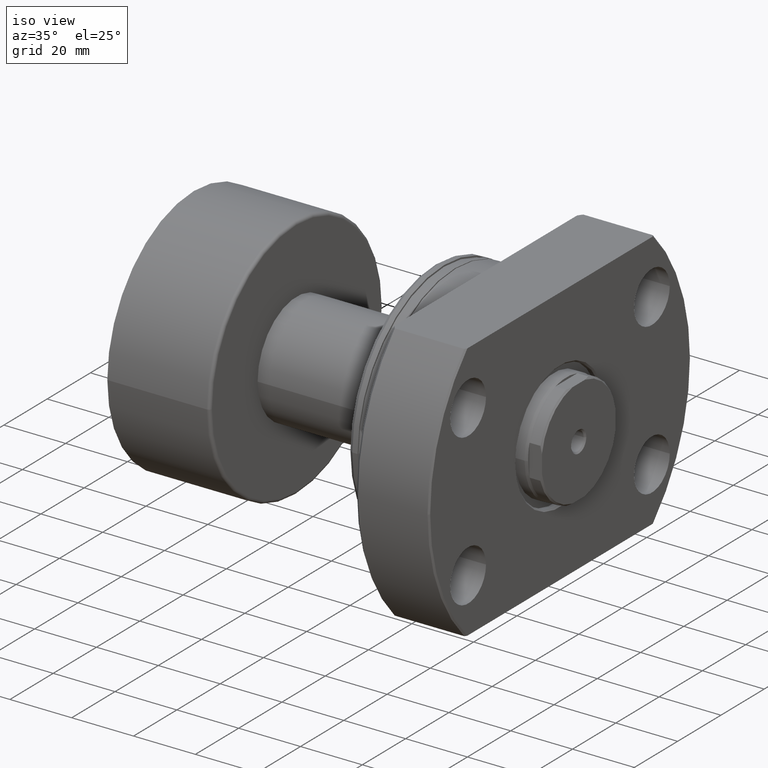
[diagram: clean part render]
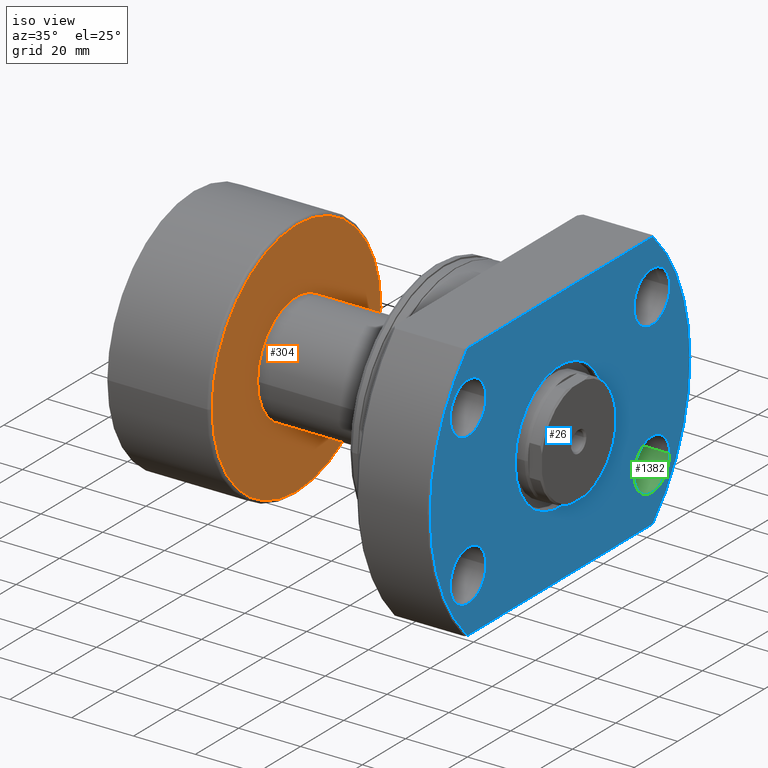
[diagram: same view with three faces highlighted in distinct colors, each labeled with its STEP entity id]
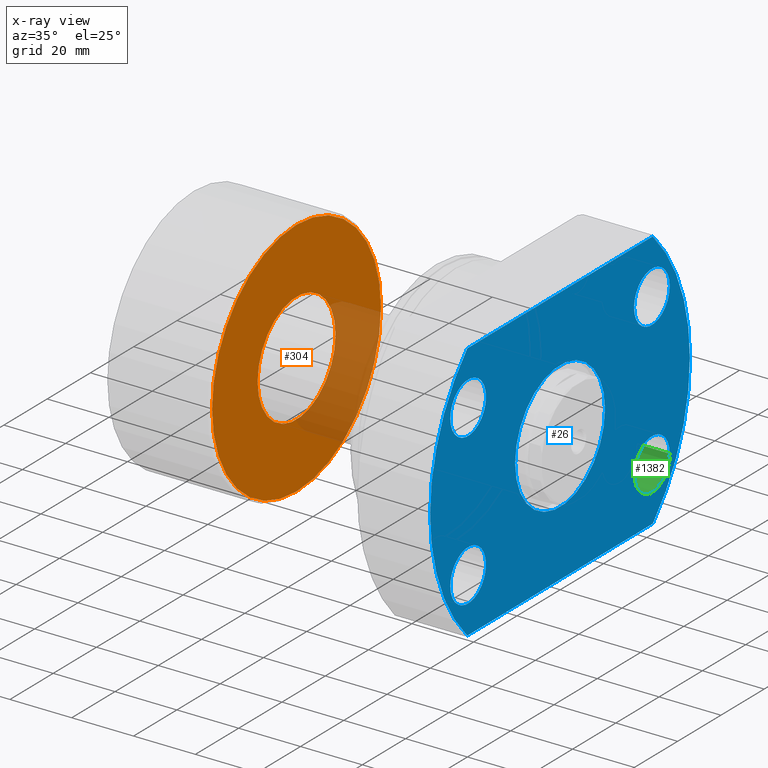
[diagram: x-ray of the same camera — body ghosted, the three highlighted faces saturated]
A machine part, iso view with three faces highlighted in distinct colors.
The next image is the same camera in x-ray (body ghosted, the three faces saturated) — at least one of them is partly hidden behind the body in this view.
Their STEP definitions:

[orange] entity #304 — the highlighted planar face has unit normal (-1, -0, 0).
#113 = FACE_BOUND ( 'NONE', #1197, .T. ) ;
#221 = EDGE_CURVE ( 'NONE', #1168, #252, #2196, .T. ) ;
#225 = AXIS2_PLACEMENT_3D ( 'NONE', #657, #2350, #670 ) ;
#252 = VERTEX_POINT ( 'NONE', #378 ) ;
#304 = ADVANCED_FACE ( 'NONE', ( #1350, #113 ), #1338, .F. ) ;
#332 = DIRECTION ( 'NONE',  ( 0.000000000000000000, -1.000000000000000000, 0.000000000000000000 ) ) ;
#334 = CIRCLE ( 'NONE', #2884, 18.00000000000000000 ) ;
#378 = CARTESIAN_POINT ( 'NONE',  ( 34.70000000000000284, 38.99999999999999289, 4.837354856632044663E-15 ) ) ;
#416 = VERTEX_POINT ( 'NONE', #1980 ) ;
#553 = CARTESIAN_POINT ( 'NONE',  ( 34.70000000000000284, 18.00000000000000000, 2.204364238465241739E-15 ) ) ;
#611 = ORIENTED_EDGE ( 'NONE', *, *, #1720, .F. ) ;
#657 = CARTESIAN_POINT ( 'NONE',  ( 34.70000000000000284, 3.711311857579658694E-16, 0.000000000000000000 ) ) ;
#670 = DIRECTION ( 'NONE',  ( 0.000000000000000000, -1.000000000000000000, 0.000000000000000000 ) ) ;
#895 = DIRECTION ( 'NONE',  ( -1.000000000000000000, -1.069542322069065801E-17, -0.000000000000000000 ) ) ;
#1002 = DIRECTION ( 'NONE',  ( -1.000000000000000000, -1.069542322069065801E-17, -0.000000000000000000 ) ) ;
#1079 = CARTESIAN_POINT ( 'NONE',  ( 34.70000000000000284, 3.711311857579658694E-16, 0.000000000000000000 ) ) ;
#1155 = CARTESIAN_POINT ( 'NONE',  ( 34.70000000000000284, -18.00000000000000000, 0.000000000000000000 ) ) ;
#1162 = EDGE_CURVE ( 'NONE', #416, #1992, #1789, .T. ) ;
#1168 = VERTEX_POINT ( 'NONE', #2601 ) ;
#1197 = EDGE_LOOP ( 'NONE', ( #3099, #1206 ) ) ;
#1206 = ORIENTED_EDGE ( 'NONE', *, *, #1557, .T. ) ;
#1338 = PLANE ( 'NONE',  #3077 ) ;
#1350 = FACE_OUTER_BOUND ( 'NONE', #1835, .T. ) ;
#1358 = AXIS2_PLACEMENT_3D ( 'NONE', #2893, #895, #2870 ) ;
#1557 = EDGE_CURVE ( 'NONE', #1992, #416, #334, .T. ) ;
#1720 = EDGE_CURVE ( 'NONE', #252, #1168, #3034, .T. ) ;
#1789 = CIRCLE ( 'NONE', #2358, 18.00000000000000000 ) ;
#1833 = DIRECTION ( 'NONE',  ( -1.000000000000000000, -1.069542322069065801E-17, -0.000000000000000000 ) ) ;
#1835 = EDGE_LOOP ( 'NONE', ( #2608, #611 ) ) ;
#1980 = CARTESIAN_POINT ( 'NONE',  ( 34.70000000000000284, -18.00000000000000000, 0.000000000000000000 ) ) ;
#1992 = VERTEX_POINT ( 'NONE', #553 ) ;
#2159 = DIRECTION ( 'NONE',  ( -1.000000000000000000, -1.069542322069065801E-17, 0.000000000000000000 ) ) ;
#2196 = CIRCLE ( 'NONE', #1358, 38.99999999999999289 ) ;
#2243 = CARTESIAN_POINT ( 'NONE',  ( 34.70000000000000284, 3.711311857579658694E-16, 0.000000000000000000 ) ) ;
#2350 = DIRECTION ( 'NONE',  ( -1.000000000000000000, -1.069542322069065801E-17, -0.000000000000000000 ) ) ;
#2358 = AXIS2_PLACEMENT_3D ( 'NONE', #2243, #1002, #2992 ) ;
#2601 = CARTESIAN_POINT ( 'NONE',  ( 34.70000000000000284, -38.99999999999999289, 0.000000000000000000 ) ) ;
#2608 = ORIENTED_EDGE ( 'NONE', *, *, #221, .F. ) ;
#2870 = DIRECTION ( 'NONE',  ( 0.000000000000000000, -1.000000000000000000, 0.000000000000000000 ) ) ;
#2884 = AXIS2_PLACEMENT_3D ( 'NONE', #1079, #1833, #332 ) ;
#2893 = CARTESIAN_POINT ( 'NONE',  ( 34.70000000000000284, 3.711311857579658694E-16, 0.000000000000000000 ) ) ;
#2992 = DIRECTION ( 'NONE',  ( 0.000000000000000000, -1.000000000000000000, 0.000000000000000000 ) ) ;
#3034 = CIRCLE ( 'NONE', #225, 38.99999999999999289 ) ;
#3077 = AXIS2_PLACEMENT_3D ( 'NONE', #1155, #2159, #3148 ) ;
#3099 = ORIENTED_EDGE ( 'NONE', *, *, #1162, .T. ) ;
#3148 = DIRECTION ( 'NONE',  ( 1.069542322069065801E-17, -1.000000000000000000, 0.000000000000000000 ) ) ;

[blue] entity #26 — the highlighted planar face has unit normal (-1, -0, 0).
#24 = CARTESIAN_POINT ( 'NONE',  ( 40.20000000000000284, 1.922695474661343877E-15, 0.000000000000000000 ) ) ;
#26 = ADVANCED_FACE ( 'NONE', ( #2226, #2712, #1690, #3213, #1971, #264 ), #3196, .F. ) ;
#29 = CARTESIAN_POINT ( 'NONE',  ( 40.20000000000146656, 50.69999999999883755, 24.50000000000000355 ) ) ;
#71 = AXIS2_PLACEMENT_3D ( 'NONE', #108, #1973, #1172 ) ;
#76 = LINE ( 'NONE', #3056, #2674 ) ;
#93 = DIRECTION ( 'NONE',  ( 0.000000000000000000, 1.000000000000000000, 0.000000000000000000 ) ) ;
#98 = CARTESIAN_POINT ( 'NONE',  ( 40.20000000000000284, -42.84857057125709190, 42.00000000000000711 ) ) ;
#108 = CARTESIAN_POINT ( 'NONE',  ( 40.20000000000122498, 42.44999999999883755, -24.49999999999999645 ) ) ;
#124 = DIRECTION ( 'NONE',  ( 1.000000000000000000, 4.782824563834189405E-17, -0.000000000000000000 ) ) ;
#133 = DIRECTION ( 'NONE',  ( 1.000000000000000000, -2.889302749805715994E-14, -3.155443620884047222E-30 ) ) ;
#187 = ORIENTED_EDGE ( 'NONE', *, *, #2180, .F. ) ;
#191 = ORIENTED_EDGE ( 'NONE', *, *, #3170, .F. ) ;
#194 = CARTESIAN_POINT ( 'NONE',  ( 40.20000000000000284, 42.84857057125708479, 42.00000000000000711 ) ) ;
#214 = AXIS2_PLACEMENT_3D ( 'NONE', #1110, #2336, #1918 ) ;
#216 = EDGE_LOOP ( 'NONE', ( #191, #187 ) ) ;
#238 = CARTESIAN_POINT ( 'NONE',  ( 40.20000000000000284, -60.00000000000000000, 0.000000000000000000 ) ) ;
#264 = FACE_OUTER_BOUND ( 'NONE', #2201, .T. ) ;
#290 = EDGE_CURVE ( 'NONE', #687, #612, #579, .T. ) ;
#295 = CARTESIAN_POINT ( 'NONE',  ( 40.20000000000099050, 34.19999999999883755, 24.50000000000000355 ) ) ;
#320 = EDGE_CURVE ( 'NONE', #1681, #710, #2561, .T. ) ;
#361 = DIRECTION ( 'NONE',  ( 1.000000000000000000, -2.886466111666351885E-14, 0.000000000000000000 ) ) ;
#365 = ORIENTED_EDGE ( 'NONE', *, *, #2954, .T. ) ;
#368 = EDGE_CURVE ( 'NONE', #710, #1681, #1939, .T. ) ;
#374 = CARTESIAN_POINT ( 'NONE',  ( 40.19999999999900808, -34.20000000000117524, 24.50000000000000355 ) ) ;
#386 = EDGE_CURVE ( 'NONE', #2069, #774, #1675, .T. ) ;
#390 = DIRECTION ( 'NONE',  ( -4.782824563834189405E-17, 1.000000000000000000, -0.000000000000000000 ) ) ;
#403 = ORIENTED_EDGE ( 'NONE', *, *, #320, .T. ) ;
#408 = EDGE_CURVE ( 'NONE', #1548, #2290, #1447, .T. ) ;
#502 = ORIENTED_EDGE ( 'NONE', *, *, #962, .F. ) ;
#510 = DIRECTION ( 'NONE',  ( 1.000000000000000000, 4.782824563834189405E-17, -0.000000000000000000 ) ) ;
#513 = EDGE_CURVE ( 'NONE', #612, #687, #2303, .T. ) ;
#548 = DIRECTION ( 'NONE',  ( 1.000000000000000000, -2.889302749805715994E-14, -3.155443620884047222E-30 ) ) ;
#558 = ORIENTED_EDGE ( 'NONE', *, *, #2417, .F. ) ;
#578 = DIRECTION ( 'NONE',  ( 1.000000000000000000, 4.782824563834189405E-17, -0.000000000000000000 ) ) ;
#579 = CIRCLE ( 'NONE', #739, 8.250000000000000000 ) ;
#607 = DIRECTION ( 'NONE',  ( 2.859665366458736410E-14, 1.000000000000000000, 0.000000000000000000 ) ) ;
#612 = VERTEX_POINT ( 'NONE', #295 ) ;
#687 = VERTEX_POINT ( 'NONE', #29 ) ;
#702 = EDGE_LOOP ( 'NONE', ( #403, #2530 ) ) ;
#710 = VERTEX_POINT ( 'NONE', #1847 ) ;
#723 = CARTESIAN_POINT ( 'NONE',  ( 40.19999999999877360, -42.45000000000117524, -24.49999999999999645 ) ) ;
#739 = AXIS2_PLACEMENT_3D ( 'NONE', #2398, #361, #607 ) ;
#774 = VERTEX_POINT ( 'NONE', #374 ) ;
#813 = DIRECTION ( 'NONE',  ( 0.000000000000000000, 1.000000000000000000, 0.000000000000000000 ) ) ;
#853 = CIRCLE ( 'NONE', #1370, 60.00000000000000000 ) ;
#882 = CARTESIAN_POINT ( 'NONE',  ( 40.20000000000000284, 20.74999999999760547, 0.000000000000000000 ) ) ;
#885 = ORIENTED_EDGE ( 'NONE', *, *, #1057, .T. ) ;
#890 = AXIS2_PLACEMENT_3D ( 'NONE', #238, #2192, #984 ) ;
#893 = AXIS2_PLACEMENT_3D ( 'NONE', #2843, #1368, #2595 ) ;
#917 = VERTEX_POINT ( 'NONE', #941 ) ;
#941 = CARTESIAN_POINT ( 'NONE',  ( 40.20000000000146656, 50.69999999999884466, -24.49999999999999645 ) ) ;
#953 = AXIS2_PLACEMENT_3D ( 'NONE', #2863, #124, #2330 ) ;
#962 = EDGE_CURVE ( 'NONE', #2335, #917, #1947, .T. ) ;
#975 = CARTESIAN_POINT ( 'NONE',  ( 40.19999999999853202, -50.70000000000118234, -24.49999999999999645 ) ) ;
#984 = DIRECTION ( 'NONE',  ( 4.782824563834189405E-17, -1.000000000000000000, 0.000000000000000000 ) ) ;
#1026 = VERTEX_POINT ( 'NONE', #2802 ) ;
#1057 = EDGE_CURVE ( 'NONE', #1026, #2290, #2619, .T. ) ;
#1072 = CARTESIAN_POINT ( 'NONE',  ( 40.20000000000000284, 1.922695474661343877E-15, 0.000000000000000000 ) ) ;
#1097 = VERTEX_POINT ( 'NONE', #1810 ) ;
#1110 = CARTESIAN_POINT ( 'NONE',  ( 40.20000000000000284, -1.160359376889872993E-12, 0.000000000000000000 ) ) ;
#1127 = DIRECTION ( 'NONE',  ( 2.859665366458736410E-14, 1.000000000000000000, 0.000000000000000000 ) ) ;
#1146 = ORIENTED_EDGE ( 'NONE', *, *, #1179, .T. ) ;
#1151 = CARTESIAN_POINT ( 'NONE',  ( 40.19999999999877360, -42.45000000000117524, -24.49999999999999645 ) ) ;
#1172 = DIRECTION ( 'NONE',  ( 2.859665366458733885E-14, 1.000000000000000000, 0.000000000000000000 ) ) ;
#1179 = EDGE_CURVE ( 'NONE', #1548, #1776, #2773, .T. ) ;
#1254 = EDGE_CURVE ( 'NONE', #2799, #1026, #76, .T. ) ;
#1321 = ORIENTED_EDGE ( 'NONE', *, *, #386, .F. ) ;
#1368 = DIRECTION ( 'NONE',  ( -1.000000000000000000, -4.782824563834189405E-17, 0.000000000000000000 ) ) ;
#1370 = AXIS2_PLACEMENT_3D ( 'NONE', #1072, #578, #93 ) ;
#1405 = ORIENTED_EDGE ( 'NONE', *, *, #3011, .F. ) ;
#1408 = DIRECTION ( 'NONE',  ( 1.000000000000000000, -2.889302749805715994E-14, -3.155443620884047222E-30 ) ) ;
#1447 = LINE ( 'NONE', #2434, #2719 ) ;
#1461 = DIRECTION ( 'NONE',  ( 1.000000000000000000, -2.886466111666351885E-14, 0.000000000000000000 ) ) ;
#1469 = AXIS2_PLACEMENT_3D ( 'NONE', #24, #510, #813 ) ;
#1481 = ORIENTED_EDGE ( 'NONE', *, *, #290, .F. ) ;
#1502 = DIRECTION ( 'NONE',  ( 1.000000000000000000, -2.889302749805715994E-14, -3.155443620884047222E-30 ) ) ;
#1522 = EDGE_LOOP ( 'NONE', ( #1405, #502 ) ) ;
#1548 = VERTEX_POINT ( 'NONE', #98 ) ;
#1560 = DIRECTION ( 'NONE',  ( 2.859665366458736410E-14, 1.000000000000000000, 0.000000000000000000 ) ) ;
#1637 = CIRCLE ( 'NONE', #71, 8.250000000000007105 ) ;
#1642 = AXIS2_PLACEMENT_3D ( 'NONE', #2788, #548, #1560 ) ;
#1675 = CIRCLE ( 'NONE', #2823, 8.250000000000000000 ) ;
#1681 = VERTEX_POINT ( 'NONE', #882 ) ;
#1690 = FACE_BOUND ( 'NONE', #2376, .T. ) ;
#1776 = VERTEX_POINT ( 'NONE', #2115 ) ;
#1810 = CARTESIAN_POINT ( 'NONE',  ( 40.19999999999900808, -34.20000000000116813, -24.49999999999999645 ) ) ;
#1815 = CARTESIAN_POINT ( 'NONE',  ( 40.19999999999853202, -50.70000000000117524, 24.50000000000000355 ) ) ;
#1847 = CARTESIAN_POINT ( 'NONE',  ( 40.20000000000000284, -20.75000000000112266, 2.541142108230753141E-15 ) ) ;
#1862 = DIRECTION ( 'NONE',  ( 2.859665366458733885E-14, 1.000000000000000000, 0.000000000000000000 ) ) ;
#1894 = CIRCLE ( 'NONE', #2891, 8.250000000000007105 ) ;
#1918 = DIRECTION ( 'NONE',  ( 0.000000000000000000, -1.000000000000000000, 0.000000000000000000 ) ) ;
#1939 = CIRCLE ( 'NONE', #893, 20.74999999999876010 ) ;
#1947 = CIRCLE ( 'NONE', #2203, 8.250000000000007105 ) ;
#1966 = DIRECTION ( 'NONE',  ( 2.859665366458736410E-14, 1.000000000000000000, 0.000000000000000000 ) ) ;
#1971 = FACE_BOUND ( 'NONE', #1522, .T. ) ;
#1973 = DIRECTION ( 'NONE',  ( 1.000000000000000000, -2.889302749805715994E-14, -3.155443620884047222E-30 ) ) ;
#2069 = VERTEX_POINT ( 'NONE', #1815 ) ;
#2115 = CARTESIAN_POINT ( 'NONE',  ( 40.20000000000000284, -60.00000000000000000, 0.000000000000000000 ) ) ;
#2154 = DIRECTION ( 'NONE',  ( 1.000000000000000000, -2.889302749805715994E-14, -3.155443620884047222E-30 ) ) ;
#2175 = CARTESIAN_POINT ( 'NONE',  ( 40.20000000000122498, 42.44999999999883755, 24.50000000000000355 ) ) ;
#2180 = EDGE_CURVE ( 'NONE', #2291, #1097, #1894, .T. ) ;
#2192 = DIRECTION ( 'NONE',  ( -1.000000000000000000, -4.782824563834189405E-17, 0.000000000000000000 ) ) ;
#2201 = EDGE_LOOP ( 'NONE', ( #2896, #1146, #365, #2329, #885 ) ) ;
#2203 = AXIS2_PLACEMENT_3D ( 'NONE', #2903, #1408, #2720 ) ;
#2226 = FACE_BOUND ( 'NONE', #702, .T. ) ;
#2290 = VERTEX_POINT ( 'NONE', #194 ) ;
#2291 = VERTEX_POINT ( 'NONE', #975 ) ;
#2303 = CIRCLE ( 'NONE', #3081, 8.250000000000000000 ) ;
#2329 = ORIENTED_EDGE ( 'NONE', *, *, #1254, .T. ) ;
#2330 = DIRECTION ( 'NONE',  ( 0.000000000000000000, 1.000000000000000000, 0.000000000000000000 ) ) ;
#2335 = VERTEX_POINT ( 'NONE', #2960 ) ;
#2336 = DIRECTION ( 'NONE',  ( -1.000000000000000000, -4.782824563834189405E-17, 0.000000000000000000 ) ) ;
#2372 = CARTESIAN_POINT ( 'NONE',  ( 40.19999999999877360, -42.45000000000117524, 24.50000000000000355 ) ) ;
#2376 = EDGE_LOOP ( 'NONE', ( #558, #1321 ) ) ;
#2398 = CARTESIAN_POINT ( 'NONE',  ( 40.20000000000122498, 42.44999999999883755, 24.50000000000000355 ) ) ;
#2417 = EDGE_CURVE ( 'NONE', #774, #2069, #2631, .T. ) ;
#2434 = CARTESIAN_POINT ( 'NONE',  ( 40.20000000000000284, 43.54595273960703850, 42.00000000000000711 ) ) ;
#2522 = AXIS2_PLACEMENT_3D ( 'NONE', #723, #1502, #3015 ) ;
#2530 = ORIENTED_EDGE ( 'NONE', *, *, #368, .T. ) ;
#2561 = CIRCLE ( 'NONE', #214, 20.74999999999876010 ) ;
#2595 = DIRECTION ( 'NONE',  ( 0.000000000000000000, -1.000000000000000000, 0.000000000000000000 ) ) ;
#2619 = CIRCLE ( 'NONE', #1469, 60.00000000000000000 ) ;
#2631 = CIRCLE ( 'NONE', #1642, 8.250000000000000000 ) ;
#2665 = EDGE_LOOP ( 'NONE', ( #1481, #2821 ) ) ;
#2674 = VECTOR ( 'NONE', #390, 1000.000000000000000 ) ;
#2693 = CARTESIAN_POINT ( 'NONE',  ( 40.20000000000000284, -42.84857057125708479, -42.00000000000000711 ) ) ;
#2695 = DIRECTION ( 'NONE',  ( -0.000000000000000000, 1.000000000000000000, 0.000000000000000000 ) ) ;
#2712 = FACE_BOUND ( 'NONE', #2665, .T. ) ;
#2719 = VECTOR ( 'NONE', #2695, 1000.000000000000000 ) ;
#2720 = DIRECTION ( 'NONE',  ( 2.859665366458733885E-14, 1.000000000000000000, 0.000000000000000000 ) ) ;
#2773 = CIRCLE ( 'NONE', #953, 60.00000000000000000 ) ;
#2788 = CARTESIAN_POINT ( 'NONE',  ( 40.19999999999877360, -42.45000000000117524, 24.50000000000000355 ) ) ;
#2799 = VERTEX_POINT ( 'NONE', #2693 ) ;
#2802 = CARTESIAN_POINT ( 'NONE',  ( 40.20000000000000284, 42.84857057125709190, -42.00000000000000711 ) ) ;
#2821 = ORIENTED_EDGE ( 'NONE', *, *, #513, .F. ) ;
#2823 = AXIS2_PLACEMENT_3D ( 'NONE', #2372, #133, #1127 ) ;
#2829 = CIRCLE ( 'NONE', #2522, 8.250000000000007105 ) ;
#2843 = CARTESIAN_POINT ( 'NONE',  ( 40.20000000000000284, -1.160359376889872993E-12, 0.000000000000000000 ) ) ;
#2863 = CARTESIAN_POINT ( 'NONE',  ( 40.20000000000000284, 1.922695474661343877E-15, 0.000000000000000000 ) ) ;
#2891 = AXIS2_PLACEMENT_3D ( 'NONE', #1151, #2154, #1862 ) ;
#2896 = ORIENTED_EDGE ( 'NONE', *, *, #408, .F. ) ;
#2903 = CARTESIAN_POINT ( 'NONE',  ( 40.20000000000122498, 42.44999999999883755, -24.49999999999999645 ) ) ;
#2954 = EDGE_CURVE ( 'NONE', #1776, #2799, #853, .T. ) ;
#2960 = CARTESIAN_POINT ( 'NONE',  ( 40.20000000000099050, 34.19999999999883045, -24.49999999999999645 ) ) ;
#3011 = EDGE_CURVE ( 'NONE', #917, #2335, #1637, .T. ) ;
#3015 = DIRECTION ( 'NONE',  ( 2.859665366458733885E-14, 1.000000000000000000, 0.000000000000000000 ) ) ;
#3056 = CARTESIAN_POINT ( 'NONE',  ( 40.20000000000000284, -60.00000000000000000, -42.00000000000000711 ) ) ;
#3081 = AXIS2_PLACEMENT_3D ( 'NONE', #2175, #1461, #1966 ) ;
#3170 = EDGE_CURVE ( 'NONE', #1097, #2291, #2829, .T. ) ;
#3196 = PLANE ( 'NONE',  #890 ) ;
#3213 = FACE_BOUND ( 'NONE', #216, .T. ) ;

[green] entity #1382 — the highlighted cylindrical surface (edge-blend (fillet) strip) has radius 8.25 mm, axis along (1, -0, 0).
#141 = EDGE_CURVE ( 'NONE', #568, #917, #520, .T. ) ;
#189 = VERTEX_POINT ( 'NONE', #1062 ) ;
#406 = DIRECTION ( 'NONE',  ( 1.000000000000000000, -2.886466111666352516E-14, -0.000000000000000000 ) ) ;
#520 = LINE ( 'NONE', #2047, #2923 ) ;
#568 = VERTEX_POINT ( 'NONE', #2320 ) ;
#613 = CARTESIAN_POINT ( 'NONE',  ( 29.70000000000098694, 34.19999999999913598, -24.49999999999999645 ) ) ;
#910 = DIRECTION ( 'NONE',  ( 1.000000000000000000, -2.886466111666352516E-14, -0.000000000000000000 ) ) ;
#917 = VERTEX_POINT ( 'NONE', #941 ) ;
#941 = CARTESIAN_POINT ( 'NONE',  ( 40.20000000000146656, 50.69999999999884466, -24.49999999999999645 ) ) ;
#962 = EDGE_CURVE ( 'NONE', #2335, #917, #1947, .T. ) ;
#1062 = CARTESIAN_POINT ( 'NONE',  ( 29.70000000000098694, 34.19999999999913598, -24.49999999999999645 ) ) ;
#1109 = ORIENTED_EDGE ( 'NONE', *, *, #141, .F. ) ;
#1200 = EDGE_CURVE ( 'NONE', #189, #2335, #2101, .T. ) ;
#1371 = CIRCLE ( 'NONE', #1424, 8.250000000000007105 ) ;
#1382 = ADVANCED_FACE ( 'NONE', ( #3155 ), #3138, .F. ) ;
#1391 = ORIENTED_EDGE ( 'NONE', *, *, #962, .T. ) ;
#1408 = DIRECTION ( 'NONE',  ( 1.000000000000000000, -2.889302749805715994E-14, -3.155443620884047222E-30 ) ) ;
#1424 = AXIS2_PLACEMENT_3D ( 'NONE', #2610, #2466, #1949 ) ;
#1586 = DIRECTION ( 'NONE',  ( 1.000000000000000000, -2.886466111666352516E-14, -0.000000000000000000 ) ) ;
#1718 = EDGE_LOOP ( 'NONE', ( #2284, #2962, #1391, #1109 ) ) ;
#1784 = EDGE_CURVE ( 'NONE', #189, #568, #1371, .T. ) ;
#1895 = VECTOR ( 'NONE', #406, 1000.000000000000000 ) ;
#1947 = CIRCLE ( 'NONE', #2203, 8.250000000000007105 ) ;
#1949 = DIRECTION ( 'NONE',  ( 2.901719268906656730E-14, 1.000000000000000000, 0.000000000000000000 ) ) ;
#1975 = DIRECTION ( 'NONE',  ( 2.901719268906656730E-14, 1.000000000000000000, 0.000000000000000000 ) ) ;
#2047 = CARTESIAN_POINT ( 'NONE',  ( 29.70000000000146656, 50.69999999999915019, -24.49999999999999645 ) ) ;
#2101 = LINE ( 'NONE', #613, #1895 ) ;
#2203 = AXIS2_PLACEMENT_3D ( 'NONE', #2903, #1408, #2720 ) ;
#2284 = ORIENTED_EDGE ( 'NONE', *, *, #1784, .F. ) ;
#2320 = CARTESIAN_POINT ( 'NONE',  ( 29.70000000000146656, 50.69999999999915019, -24.49999999999999645 ) ) ;
#2335 = VERTEX_POINT ( 'NONE', #2960 ) ;
#2466 = DIRECTION ( 'NONE',  ( 1.000000000000000000, -2.889302749805715994E-14, -3.155443620884047222E-30 ) ) ;
#2467 = AXIS2_PLACEMENT_3D ( 'NONE', #2958, #910, #1975 ) ;
#2610 = CARTESIAN_POINT ( 'NONE',  ( 29.70000000000122498, 42.44999999999914309, -24.49999999999999645 ) ) ;
#2720 = DIRECTION ( 'NONE',  ( 2.859665366458733885E-14, 1.000000000000000000, 0.000000000000000000 ) ) ;
#2903 = CARTESIAN_POINT ( 'NONE',  ( 40.20000000000122498, 42.44999999999883755, -24.49999999999999645 ) ) ;
#2923 = VECTOR ( 'NONE', #1586, 1000.000000000000000 ) ;
#2958 = CARTESIAN_POINT ( 'NONE',  ( 29.70000000000122498, 42.44999999999914309, -24.49999999999999645 ) ) ;
#2960 = CARTESIAN_POINT ( 'NONE',  ( 40.20000000000099050, 34.19999999999883045, -24.49999999999999645 ) ) ;
#2962 = ORIENTED_EDGE ( 'NONE', *, *, #1200, .T. ) ;
#3138 = CYLINDRICAL_SURFACE ( 'NONE', #2467, 8.250000000000007105 ) ;
#3155 = FACE_OUTER_BOUND ( 'NONE', #1718, .T. ) ;